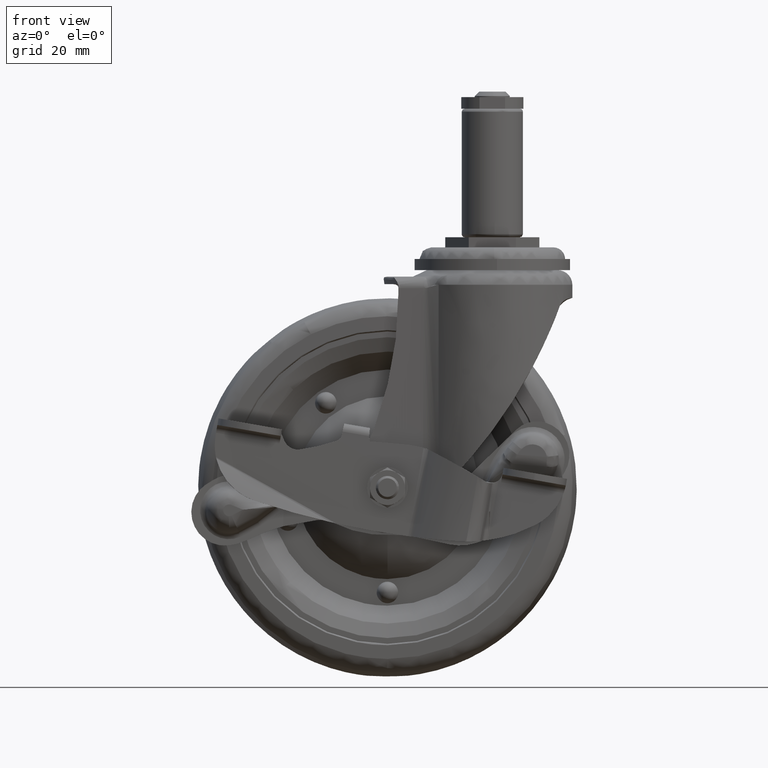
[diagram: clean part render]
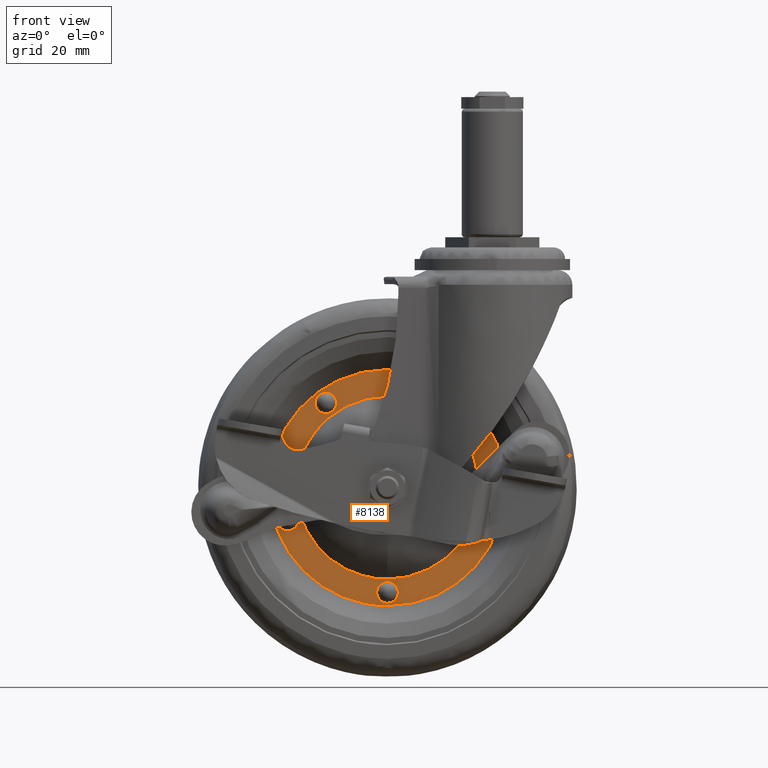
[diagram: same view with one face highlighted and labeled with its STEP entity id]
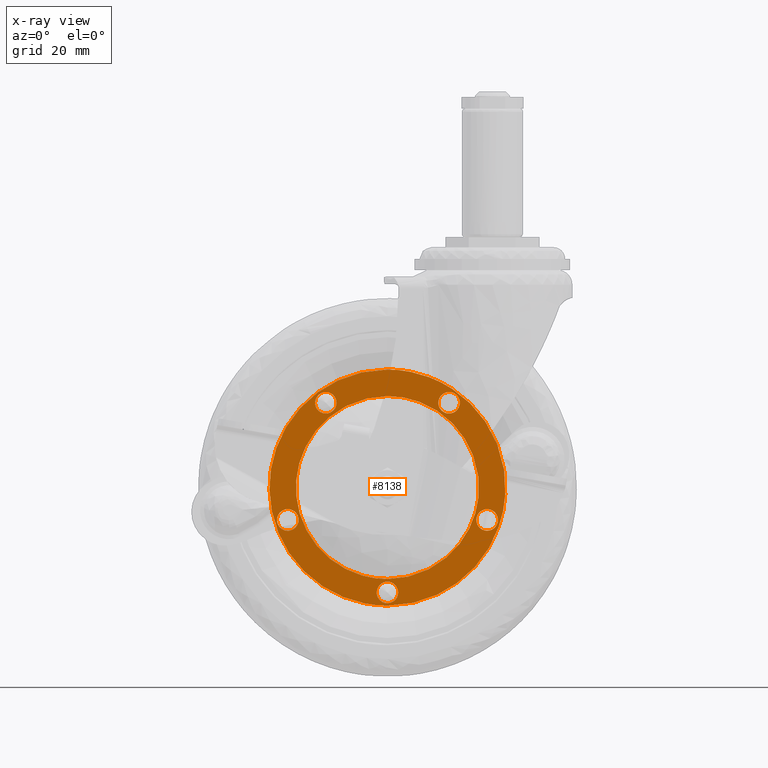
[diagram: x-ray of the same camera — body ghosted, the highlighted face saturated]
A machine part, front view. The second image highlights one B-rep face of the part: STEP entity #8138.
The next image is the same camera in x-ray: the body ghosted, the highlighted face saturated — about 0% of this face is hidden behind the body in this view.
In plain terms, the highlighted face is a freeform B-spline surface patch.
Its self-contained STEP definition (entity closure, byte-faithful):
#4001=CARTESIAN_POINT('',(4.457931786579010,-3.774815623312229,-88.474701114335716));
#4002=VERTEX_POINT('',#4001);
#4008=CARTESIAN_POINT('',(-36.0,-3.774815623259500,-126.533722999999990));
#4009=VERTEX_POINT('',#4008);
#4010=CARTESIAN_POINT('',(-36.0,-3.774815623259500,-126.533722999999990));
#4011=CARTESIAN_POINT('',(2.130142286883728,-3.774815623259499,-126.533722999999990));
#4012=CARTESIAN_POINT('',(4.457931786579010,-3.774815623312229,-88.474701114335716));
#4020=(BOUNDED_CURVE()B_SPLINE_CURVE(2,(#4010,#4011,#4012),.UNSPECIFIED.,.F.,.U.)B_SPLINE_CURVE_WITH_KNOTS((3,3),(0.0,0.239332962238578),.UNSPECIFIED.)CURVE()GEOMETRIC_REPRESENTATION_ITEM()RATIONAL_B_SPLINE_CURVE((1.0,0.719603993287138,0.976072041665936))REPRESENTATION_ITEM(''));
#4021=EDGE_CURVE('',#4009,#4002,#4020,.T.);
#4023=CARTESIAN_POINT('',(-36.0,-3.774815623259500,-45.466653000000001));
#4024=VERTEX_POINT('',#4023);
#4025=CARTESIAN_POINT('',(-36.0,-3.774815623259500,-45.466653000000001));
#4026=CARTESIAN_POINT('',(-76.533535000000001,-3.774815623259500,-45.466653000000001));
#4027=CARTESIAN_POINT('',(-76.533535000000001,-3.774815623259500,-86.000188000000009));
#4028=CARTESIAN_POINT('',(-76.533535000000001,-3.774815623259500,-126.533723000000020));
#4029=CARTESIAN_POINT('',(-36.0,-3.774815623259500,-126.533722999999990));
#4037=(BOUNDED_CURVE()B_SPLINE_CURVE(2,(#4025,#4026,#4027,#4028,#4029),.UNSPECIFIED.,.F.,.U.)B_SPLINE_CURVE_WITH_KNOTS((3,2,3),(0.500000000000000,0.750000000000000,1.0),.UNSPECIFIED.)CURVE()GEOMETRIC_REPRESENTATION_ITEM()RATIONAL_B_SPLINE_CURVE((1.0,0.707106781186547,1.0,0.707106781186547,1.0))REPRESENTATION_ITEM(''));
#4038=EDGE_CURVE('',#4024,#4009,#4037,.T.);
#4040=CARTESIAN_POINT('',(-21.747680528346869,-3.774815623261793,-48.054979484637393));
#4041=VERTEX_POINT('',#4040);
#4042=CARTESIAN_POINT('',(-21.747680528346869,-3.774815623261793,-48.054979484637393));
#4043=CARTESIAN_POINT('',(-28.638810660579686,-3.774815623259500,-45.466653000000008));
#4044=CARTESIAN_POINT('',(-36.0,-3.774815623259500,-45.466653000000001));
#4052=(BOUNDED_CURVE()B_SPLINE_CURVE(2,(#4042,#4043,#4044),.UNSPECIFIED.,.F.,.U.)B_SPLINE_CURVE_WITH_KNOTS((3,3),(0.440284170898723,0.500000000000000),.UNSPECIFIED.)CURVE()GEOMETRIC_REPRESENTATION_ITEM()RATIONAL_B_SPLINE_CURVE((0.893499554635537,0.930038554401651,1.0))REPRESENTATION_ITEM(''));
#4053=EDGE_CURVE('',#4041,#4024,#4052,.T.);
#4093=CARTESIAN_POINT('',(4.457931786579010,-3.774815623312229,-88.474701114335716));
#4094=CARTESIAN_POINT('',(4.533535000000006,-3.774815623259500,-87.238599500908663));
#4095=CARTESIAN_POINT('',(4.533535000000005,-3.774815623259500,-86.000188000000009));
#4096=CARTESIAN_POINT('',(4.533535000000005,-3.774815623259500,-57.926272711619795));
#4097=CARTESIAN_POINT('',(-21.747680528346876,-3.774815623261793,-48.054979484637386));
#4105=(BOUNDED_CURVE()B_SPLINE_CURVE(2,(#4093,#4094,#4095,#4096,#4097),.UNSPECIFIED.,.F.,.U.)B_SPLINE_CURVE_WITH_KNOTS((3,2,3),(0.239332962238578,0.250000000000000,0.440284170898723),.UNSPECIFIED.)CURVE()GEOMETRIC_REPRESENTATION_ITEM()RATIONAL_B_SPLINE_CURVE((0.976072041665935,0.987502787899410,1.0,0.777068226784896,0.893499554635537))REPRESENTATION_ITEM(''));
#4106=EDGE_CURVE('',#4002,#4041,#4105,.T.);
#6754=CARTESIAN_POINT('',(-4.794796014678429,-3.774815623378911,-89.627533828644687));
#6755=VERTEX_POINT('',#6754);
#6769=CARTESIAN_POINT('',(-36.0,-3.774815623259490,-54.584867000000003));
#6770=VERTEX_POINT('',#6769);
#6771=CARTESIAN_POINT('',(-4.794796014678430,-3.774815623378912,-89.627533828644687));
#6772=CARTESIAN_POINT('',(-4.584678999999995,-3.774815623259490,-87.819946515634072));
#6773=CARTESIAN_POINT('',(-4.584678999999994,-3.774815623259490,-86.000188000000009));
#6774=CARTESIAN_POINT('',(-4.584678999999995,-3.774815623259489,-54.584867000000003));
#6775=CARTESIAN_POINT('',(-36.0,-3.774815623259490,-54.584867000000003));
#6783=(BOUNDED_CURVE()B_SPLINE_CURVE(2,(#6771,#6772,#6773,#6774,#6775),.UNSPECIFIED.,.F.,.U.)B_SPLINE_CURVE_WITH_KNOTS((3,2,3),(0.229999999996425,0.250000000000000,0.500000000000000),.UNSPECIFIED.)CURVE()GEOMETRIC_REPRESENTATION_ITEM()RATIONAL_B_SPLINE_CURVE((0.956886118183623,0.976568542490735,1.0,0.707106781186548,1.0))REPRESENTATION_ITEM(''));
#6784=EDGE_CURVE('',#6755,#6770,#6783,.T.);
#6786=CARTESIAN_POINT('',(-36.0,-3.774811589469485,-117.415512723577610));
#6787=VERTEX_POINT('',#6786);
#6788=CARTESIAN_POINT('',(-36.0,-3.774815623259490,-54.584867000000003));
#6789=CARTESIAN_POINT('',(-67.415321000000006,-3.774815623259489,-54.584867000000003));
#6790=CARTESIAN_POINT('',(-67.415321000000006,-3.774813606364488,-86.000189861788826));
#6791=CARTESIAN_POINT('',(-67.415321000000006,-3.774811589469485,-117.415512723577620));
#6792=CARTESIAN_POINT('',(-36.0,-3.774811589469485,-117.415512723577610));
#6800=(BOUNDED_CURVE()B_SPLINE_CURVE(2,(#6788,#6789,#6790,#6791,#6792),.UNSPECIFIED.,.F.,.U.)B_SPLINE_CURVE_WITH_KNOTS((3,2,3),(0.500000000000000,0.750000000000000,1.0),.UNSPECIFIED.)CURVE()GEOMETRIC_REPRESENTATION_ITEM()RATIONAL_B_SPLINE_CURVE((1.0,0.707106781186548,1.0,0.707106781186548,1.0))REPRESENTATION_ITEM(''));
#6801=EDGE_CURVE('',#6770,#6787,#6800,.T.);
#6882=CARTESIAN_POINT('',(-36.0,-3.774811589469485,-117.415512723577610));
#6883=CARTESIAN_POINT('',(-8.024917371316436,-3.774813606424199,-117.415510861617520));
#6884=CARTESIAN_POINT('',(-4.794796014678429,-3.774815623378912,-89.627533828644687));
#6892=(BOUNDED_CURVE()B_SPLINE_CURVE(2,(#6882,#6883,#6884),.UNSPECIFIED.,.F.,.U.)B_SPLINE_CURVE_WITH_KNOTS((3,3),(0.0,0.229999999996425),.UNSPECIFIED.)CURVE()GEOMETRIC_REPRESENTATION_ITEM()RATIONAL_B_SPLINE_CURVE((1.0,0.730538238695812,0.956886118183623))REPRESENTATION_ITEM(''));
#6893=EDGE_CURVE('',#6787,#6755,#6892,.T.);
#7273=CARTESIAN_POINT('',(-70.238034586625503,-3.774815623259520,-100.824795797498100));
#7274=VERTEX_POINT('',#7273);
#7275=CARTESIAN_POINT('',(-70.238034586625503,-3.774815623259520,-93.424795797498120));
#7276=VERTEX_POINT('',#7275);
#7277=CARTESIAN_POINT('',(-70.238034586625503,-3.774815623259520,-100.824795797498100));
#7278=CARTESIAN_POINT('',(-66.538034586625528,-3.774815623259521,-100.824795797498130));
#7279=CARTESIAN_POINT('',(-66.538034586625514,-3.774815623259520,-97.124795797498109));
#7280=CARTESIAN_POINT('',(-66.538034586625528,-3.774815623259521,-93.424795797498106));
#7281=CARTESIAN_POINT('',(-70.238034586625503,-3.774815623259520,-93.424795797498120));
#7289=(BOUNDED_CURVE()B_SPLINE_CURVE(2,(#7277,#7278,#7279,#7280,#7281),.UNSPECIFIED.,.F.,.U.)B_SPLINE_CURVE_WITH_KNOTS((3,2,3),(0.0,0.250000000000000,0.500000000000000),.UNSPECIFIED.)CURVE()GEOMETRIC_REPRESENTATION_ITEM()RATIONAL_B_SPLINE_CURVE((1.0,0.707106781186548,1.0,0.707106781186548,1.0))REPRESENTATION_ITEM(''));
#7290=EDGE_CURVE('',#7274,#7276,#7289,.T.);
#7292=CARTESIAN_POINT('',(-70.238034586625503,-3.774815623259520,-93.424795797498120));
#7293=CARTESIAN_POINT('',(-73.938034586625491,-3.774815623259521,-93.424795797498106));
#7294=CARTESIAN_POINT('',(-73.938034586625491,-3.774815623259520,-97.124795797498109));
#7295=CARTESIAN_POINT('',(-73.938034586625491,-3.774815623259521,-100.824795797498130));
#7296=CARTESIAN_POINT('',(-70.238034586625503,-3.774815623259520,-100.824795797498100));
#7304=(BOUNDED_CURVE()B_SPLINE_CURVE(2,(#7292,#7293,#7294,#7295,#7296),.UNSPECIFIED.,.F.,.U.)B_SPLINE_CURVE_WITH_KNOTS((3,2,3),(0.500000000000000,0.750000000000000,1.0),.UNSPECIFIED.)CURVE()GEOMETRIC_REPRESENTATION_ITEM()RATIONAL_B_SPLINE_CURVE((1.0,0.707106781186548,1.0,0.707106781186548,1.0))REPRESENTATION_ITEM(''));
#7305=EDGE_CURVE('',#7276,#7274,#7304,.T.);
#7435=CARTESIAN_POINT('',(-57.160269082528899,-3.774815623259520,-60.575572202501903));
#7436=VERTEX_POINT('',#7435);
#7437=CARTESIAN_POINT('',(-57.160269082528899,-3.774815623259520,-53.175572202501897));
#7438=VERTEX_POINT('',#7437);
#7439=CARTESIAN_POINT('',(-57.160269082528899,-3.774815623259520,-60.575572202501903));
#7440=CARTESIAN_POINT('',(-53.460269082528896,-3.774815623259521,-60.575572202501910));
#7441=CARTESIAN_POINT('',(-53.460269082528903,-3.774815623259520,-56.875572202501907));
#7442=CARTESIAN_POINT('',(-53.460269082528896,-3.774815623259521,-53.175572202501904));
#7443=CARTESIAN_POINT('',(-57.160269082528899,-3.774815623259520,-53.175572202501897));
#7451=(BOUNDED_CURVE()B_SPLINE_CURVE(2,(#7439,#7440,#7441,#7442,#7443),.UNSPECIFIED.,.F.,.U.)B_SPLINE_CURVE_WITH_KNOTS((3,2,3),(0.0,0.250000000000000,0.500000000000000),.UNSPECIFIED.)CURVE()GEOMETRIC_REPRESENTATION_ITEM()RATIONAL_B_SPLINE_CURVE((1.0,0.707106781186548,1.0,0.707106781186548,1.0))REPRESENTATION_ITEM(''));
#7452=EDGE_CURVE('',#7436,#7438,#7451,.T.);
#7454=CARTESIAN_POINT('',(-57.160269082528899,-3.774815623259520,-53.175572202501897));
#7455=CARTESIAN_POINT('',(-60.860269082528902,-3.774815623259521,-53.175572202501904));
#7456=CARTESIAN_POINT('',(-60.860269082528902,-3.774815623259520,-56.875572202501907));
#7457=CARTESIAN_POINT('',(-60.860269082528902,-3.774815623259521,-60.575572202501910));
#7458=CARTESIAN_POINT('',(-57.160269082528899,-3.774815623259520,-60.575572202501903));
#7466=(BOUNDED_CURVE()B_SPLINE_CURVE(2,(#7454,#7455,#7456,#7457,#7458),.UNSPECIFIED.,.F.,.U.)B_SPLINE_CURVE_WITH_KNOTS((3,2,3),(0.500000000000000,0.750000000000000,1.0),.UNSPECIFIED.)CURVE()GEOMETRIC_REPRESENTATION_ITEM()RATIONAL_B_SPLINE_CURVE((1.0,0.707106781186548,1.0,0.707106781186548,1.0))REPRESENTATION_ITEM(''));
#7467=EDGE_CURVE('',#7438,#7436,#7466,.T.);
#7597=CARTESIAN_POINT('',(-14.839730917470879,-3.774815623259520,-60.575572202501903));
#7598=VERTEX_POINT('',#7597);
#7599=CARTESIAN_POINT('',(-14.839730917470879,-3.774815623259520,-53.175572202501897));
#7600=VERTEX_POINT('',#7599);
#7601=CARTESIAN_POINT('',(-14.839730917470879,-3.774815623259520,-60.575572202501903));
#7602=CARTESIAN_POINT('',(-11.139730917470880,-3.774815623259521,-60.575572202501910));
#7603=CARTESIAN_POINT('',(-11.139730917470880,-3.774815623259520,-56.875572202501907));
#7604=CARTESIAN_POINT('',(-11.139730917470880,-3.774815623259521,-53.175572202501904));
#7605=CARTESIAN_POINT('',(-14.839730917470879,-3.774815623259520,-53.175572202501897));
#7613=(BOUNDED_CURVE()B_SPLINE_CURVE(2,(#7601,#7602,#7603,#7604,#7605),.UNSPECIFIED.,.F.,.U.)B_SPLINE_CURVE_WITH_KNOTS((3,2,3),(0.0,0.250000000000000,0.500000000000000),.UNSPECIFIED.)CURVE()GEOMETRIC_REPRESENTATION_ITEM()RATIONAL_B_SPLINE_CURVE((1.0,0.707106781186548,1.0,0.707106781186548,1.0))REPRESENTATION_ITEM(''));
#7614=EDGE_CURVE('',#7598,#7600,#7613,.T.);
#7616=CARTESIAN_POINT('',(-14.839730917470879,-3.774815623259520,-53.175572202501897));
#7617=CARTESIAN_POINT('',(-18.539730917470877,-3.774815623259521,-53.175572202501904));
#7618=CARTESIAN_POINT('',(-18.539730917470880,-3.774815623259520,-56.875572202501907));
#7619=CARTESIAN_POINT('',(-18.539730917470877,-3.774815623259521,-60.575572202501910));
#7620=CARTESIAN_POINT('',(-14.839730917470879,-3.774815623259520,-60.575572202501903));
#7628=(BOUNDED_CURVE()B_SPLINE_CURVE(2,(#7616,#7617,#7618,#7619,#7620),.UNSPECIFIED.,.F.,.U.)B_SPLINE_CURVE_WITH_KNOTS((3,2,3),(0.500000000000000,0.750000000000000,1.0),.UNSPECIFIED.)CURVE()GEOMETRIC_REPRESENTATION_ITEM()RATIONAL_B_SPLINE_CURVE((1.0,0.707106781186548,1.0,0.707106781186548,1.0))REPRESENTATION_ITEM(''));
#7629=EDGE_CURVE('',#7600,#7598,#7628,.T.);
#7759=CARTESIAN_POINT('',(-1.761965413374385,-3.774815623259520,-100.824795797498100));
#7760=VERTEX_POINT('',#7759);
#7761=CARTESIAN_POINT('',(-1.761965413374385,-3.774815623259520,-93.424795797498120));
#7762=VERTEX_POINT('',#7761);
#7763=CARTESIAN_POINT('',(-1.761965413374385,-3.774815623259520,-100.824795797498100));
#7764=CARTESIAN_POINT('',(1.938034586625615,-3.774815623259521,-100.824795797498130));
#7765=CARTESIAN_POINT('',(1.938034586625615,-3.774815623259520,-97.124795797498109));
#7766=CARTESIAN_POINT('',(1.938034586625615,-3.774815623259521,-93.424795797498106));
#7767=CARTESIAN_POINT('',(-1.761965413374385,-3.774815623259520,-93.424795797498120));
#7775=(BOUNDED_CURVE()B_SPLINE_CURVE(2,(#7763,#7764,#7765,#7766,#7767),.UNSPECIFIED.,.F.,.U.)B_SPLINE_CURVE_WITH_KNOTS((3,2,3),(0.0,0.250000000000000,0.500000000000000),.UNSPECIFIED.)CURVE()GEOMETRIC_REPRESENTATION_ITEM()RATIONAL_B_SPLINE_CURVE((1.0,0.707106781186548,1.0,0.707106781186548,1.0))REPRESENTATION_ITEM(''));
#7776=EDGE_CURVE('',#7760,#7762,#7775,.T.);
#7778=CARTESIAN_POINT('',(-1.761965413374385,-3.774815623259520,-93.424795797498120));
#7779=CARTESIAN_POINT('',(-5.461965413374385,-3.774815623259521,-93.424795797498106));
#7780=CARTESIAN_POINT('',(-5.461965413374385,-3.774815623259520,-97.124795797498109));
#7781=CARTESIAN_POINT('',(-5.461965413374385,-3.774815623259521,-100.824795797498130));
#7782=CARTESIAN_POINT('',(-1.761965413374385,-3.774815623259520,-100.824795797498100));
#7790=(BOUNDED_CURVE()B_SPLINE_CURVE(2,(#7778,#7779,#7780,#7781,#7782),.UNSPECIFIED.,.F.,.U.)B_SPLINE_CURVE_WITH_KNOTS((3,2,3),(0.500000000000000,0.750000000000000,1.0),.UNSPECIFIED.)CURVE()GEOMETRIC_REPRESENTATION_ITEM()RATIONAL_B_SPLINE_CURVE((1.0,0.707106781186548,1.0,0.707106781186548,1.0))REPRESENTATION_ITEM(''));
#7791=EDGE_CURVE('',#7762,#7760,#7790,.T.);
#7921=CARTESIAN_POINT('',(-36.0,-3.774815623259520,-125.700183999999990));
#7922=VERTEX_POINT('',#7921);
#7923=CARTESIAN_POINT('',(-36.0,-3.774815623259520,-118.300184000000000));
#7924=VERTEX_POINT('',#7923);
#7925=CARTESIAN_POINT('',(-36.0,-3.774815623259520,-125.700183999999990));
#7926=CARTESIAN_POINT('',(-32.300000000000004,-3.774815623259521,-125.700183999999980));
#7927=CARTESIAN_POINT('',(-32.299999999999997,-3.774815623259520,-122.000184000000000));
#7928=CARTESIAN_POINT('',(-32.300000000000004,-3.774815623259521,-118.300184000000020));
#7929=CARTESIAN_POINT('',(-36.0,-3.774815623259520,-118.300184000000000));
#7937=(BOUNDED_CURVE()B_SPLINE_CURVE(2,(#7925,#7926,#7927,#7928,#7929),.UNSPECIFIED.,.F.,.U.)B_SPLINE_CURVE_WITH_KNOTS((3,2,3),(0.0,0.250000000000000,0.500000000000000),.UNSPECIFIED.)CURVE()GEOMETRIC_REPRESENTATION_ITEM()RATIONAL_B_SPLINE_CURVE((1.0,0.707106781186548,1.0,0.707106781186548,1.0))REPRESENTATION_ITEM(''));
#7938=EDGE_CURVE('',#7922,#7924,#7937,.T.);
#7940=CARTESIAN_POINT('',(-36.0,-3.774815623259520,-118.300184000000000));
#7941=CARTESIAN_POINT('',(-39.700000000000003,-3.774815623259521,-118.300184000000020));
#7942=CARTESIAN_POINT('',(-39.700000000000003,-3.774815623259520,-122.000184000000000));
#7943=CARTESIAN_POINT('',(-39.700000000000003,-3.774815623259521,-125.700183999999980));
#7944=CARTESIAN_POINT('',(-36.0,-3.774815623259520,-125.700183999999990));
#7952=(BOUNDED_CURVE()B_SPLINE_CURVE(2,(#7940,#7941,#7942,#7943,#7944),.UNSPECIFIED.,.F.,.U.)B_SPLINE_CURVE_WITH_KNOTS((3,2,3),(0.500000000000000,0.750000000000000,1.0),.UNSPECIFIED.)CURVE()GEOMETRIC_REPRESENTATION_ITEM()RATIONAL_B_SPLINE_CURVE((1.0,0.707106781186548,1.0,0.707106781186548,1.0))REPRESENTATION_ITEM(''));
#7953=EDGE_CURVE('',#7924,#7922,#7952,.T.);
#8102=CARTESIAN_POINT('',(-80.582478416845248,-3.774815623259495,-41.417351778252929));
#8103=CARTESIAN_POINT('',(-80.582478416845248,-3.774815623259495,-130.583019148174490));
#8104=CARTESIAN_POINT('',(8.575421802146583,-3.774815623259495,-41.417351778252929));
#8105=CARTESIAN_POINT('',(8.575421802146583,-3.774815623259495,-130.583019148174490));
#8106=B_SPLINE_SURFACE_WITH_KNOTS('',1,1,((#8102,#8104),(#8103,#8105)),.UNSPECIFIED.,.F.,.F.,.U.,(2,2),(2,2),(0.0,89.165667369921550),(0.0,89.157900218991827),.UNSPECIFIED.);
#8107=ORIENTED_EDGE('',*,*,#4053,.T.);
#8108=ORIENTED_EDGE('',*,*,#4038,.T.);
#8109=ORIENTED_EDGE('',*,*,#4021,.T.);
#8110=ORIENTED_EDGE('',*,*,#4106,.T.);
#8111=EDGE_LOOP('',(#8107,#8108,#8109,#8110));
#8112=FACE_OUTER_BOUND('',#8111,.T.);
#8113=ORIENTED_EDGE('',*,*,#7776,.F.);
#8114=ORIENTED_EDGE('',*,*,#7791,.F.);
#8115=EDGE_LOOP('',(#8113,#8114));
#8116=FACE_BOUND('',#8115,.T.);
#8117=ORIENTED_EDGE('',*,*,#6801,.F.);
#8118=ORIENTED_EDGE('',*,*,#6784,.F.);
#8119=ORIENTED_EDGE('',*,*,#6893,.F.);
#8120=EDGE_LOOP('',(#8117,#8118,#8119));
#8121=FACE_BOUND('',#8120,.T.);
#8122=ORIENTED_EDGE('',*,*,#7452,.F.);
#8123=ORIENTED_EDGE('',*,*,#7467,.F.);
#8124=EDGE_LOOP('',(#8122,#8123));
#8125=FACE_BOUND('',#8124,.T.);
#8126=ORIENTED_EDGE('',*,*,#7938,.F.);
#8127=ORIENTED_EDGE('',*,*,#7953,.F.);
#8128=EDGE_LOOP('',(#8126,#8127));
#8129=FACE_BOUND('',#8128,.T.);
#8130=ORIENTED_EDGE('',*,*,#7614,.F.);
#8131=ORIENTED_EDGE('',*,*,#7629,.F.);
#8132=EDGE_LOOP('',(#8130,#8131));
#8133=FACE_BOUND('',#8132,.T.);
#8134=ORIENTED_EDGE('',*,*,#7290,.F.);
#8135=ORIENTED_EDGE('',*,*,#7305,.F.);
#8136=EDGE_LOOP('',(#8134,#8135));
#8137=FACE_BOUND('',#8136,.T.);
#8138=ADVANCED_FACE('',(#8112,#8116,#8121,#8125,#8129,#8133,#8137),#8106,.T.);